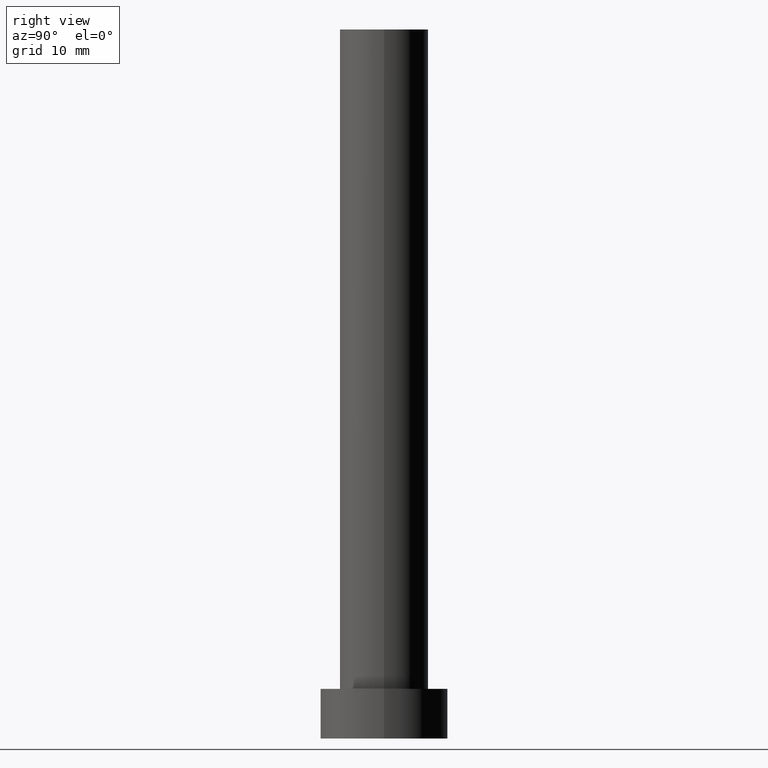
[diagram: clean part render]
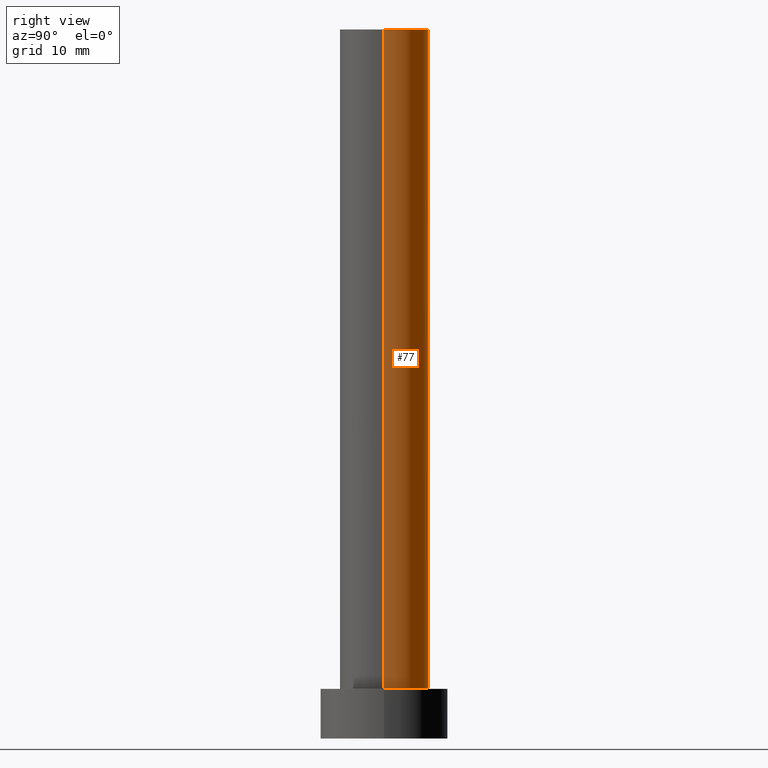
[diagram: same view with one face highlighted and labeled with its STEP entity id]
A machine part, right view. The second image highlights one B-rep face of the part: STEP entity #77.
In plain terms, the highlighted cylindrical surface (partial cylindrical patch) has radius 6.25 mm, axis along (-0, -0, -1).
Its self-contained STEP definition (entity closure, byte-faithful):
#2 = LINE ( 'NONE', #50, #232 ) ;
#8 = DIRECTION ( 'NONE',  ( -0.000000000000000000, -0.000000000000000000, -1.000000000000000000 ) ) ;
#13 = ORIENTED_EDGE ( 'NONE', *, *, #15, .T. ) ;
#15 = EDGE_CURVE ( 'NONE', #245, #35, #69, .T. ) ;
#17 = EDGE_LOOP ( 'NONE', ( #115, #13, #229, #135 ) ) ;
#23 = DIRECTION ( 'NONE',  ( -0.000000000000000000, -0.000000000000000000, -1.000000000000000000 ) ) ;
#27 = CARTESIAN_POINT ( 'NONE',  ( -6.250000000000000000, 0.000000000000000000, 100.0000000000000000 ) ) ;
#35 = VERTEX_POINT ( 'NONE', #104 ) ;
#44 = AXIS2_PLACEMENT_3D ( 'NONE', #88, #47, #121 ) ;
#46 = CARTESIAN_POINT ( 'NONE',  ( 6.250000000000000000, 7.654042494670955634E-16, 100.0000000000000000 ) ) ;
#47 = DIRECTION ( 'NONE',  ( 0.000000000000000000, 0.000000000000000000, 1.000000000000000000 ) ) ;
#50 = CARTESIAN_POINT ( 'NONE',  ( -6.250000000000000000, 0.000000000000000000, 100.0000000000000000 ) ) ;
#52 = DIRECTION ( 'NONE',  ( -0.000000000000000000, -0.000000000000000000, -1.000000000000000000 ) ) ;
#58 = AXIS2_PLACEMENT_3D ( 'NONE', #59, #61, #133 ) ;
#59 = CARTESIAN_POINT ( 'NONE',  ( 0.000000000000000000, 0.000000000000000000, 7.000000000000000000 ) ) ;
#61 = DIRECTION ( 'NONE',  ( 0.000000000000000000, 0.000000000000000000, 1.000000000000000000 ) ) ;
#69 = LINE ( 'NONE', #185, #248 ) ;
#77 = ADVANCED_FACE ( 'NONE', ( #254 ), #119, .T. ) ;
#88 = CARTESIAN_POINT ( 'NONE',  ( 0.000000000000000000, 0.000000000000000000, 100.0000000000000000 ) ) ;
#104 = CARTESIAN_POINT ( 'NONE',  ( 6.250000000000000000, 7.654042494670955634E-16, 7.000000000000000000 ) ) ;
#111 = EDGE_CURVE ( 'NONE', #245, #190, #158, .T. ) ;
#115 = ORIENTED_EDGE ( 'NONE', *, *, #111, .F. ) ;
#119 = CYLINDRICAL_SURFACE ( 'NONE', #130, 6.250000000000000000 ) ;
#120 = DIRECTION ( 'NONE',  ( -1.000000000000000000, 0.000000000000000000, 0.000000000000000000 ) ) ;
#121 = DIRECTION ( 'NONE',  ( 1.000000000000000000, 0.000000000000000000, 0.000000000000000000 ) ) ;
#130 = AXIS2_PLACEMENT_3D ( 'NONE', #217, #23, #120 ) ;
#133 = DIRECTION ( 'NONE',  ( 1.000000000000000000, 0.000000000000000000, 0.000000000000000000 ) ) ;
#135 = ORIENTED_EDGE ( 'NONE', *, *, #161, .F. ) ;
#154 = CIRCLE ( 'NONE', #58, 6.250000000000000000 ) ;
#158 = CIRCLE ( 'NONE', #44, 6.250000000000000000 ) ;
#161 = EDGE_CURVE ( 'NONE', #190, #251, #2, .T. ) ;
#185 = CARTESIAN_POINT ( 'NONE',  ( 6.250000000000000000, 7.654042494670955634E-16, 100.0000000000000000 ) ) ;
#190 = VERTEX_POINT ( 'NONE', #27 ) ;
#204 = CARTESIAN_POINT ( 'NONE',  ( -6.250000000000000000, 0.000000000000000000, 7.000000000000000000 ) ) ;
#217 = CARTESIAN_POINT ( 'NONE',  ( 0.000000000000000000, 0.000000000000000000, 100.0000000000000000 ) ) ;
#225 = EDGE_CURVE ( 'NONE', #35, #251, #154, .T. ) ;
#229 = ORIENTED_EDGE ( 'NONE', *, *, #225, .T. ) ;
#232 = VECTOR ( 'NONE', #8, 1000.000000000000000 ) ;
#245 = VERTEX_POINT ( 'NONE', #46 ) ;
#248 = VECTOR ( 'NONE', #52, 1000.000000000000000 ) ;
#251 = VERTEX_POINT ( 'NONE', #204 ) ;
#254 = FACE_OUTER_BOUND ( 'NONE', #17, .T. ) ;